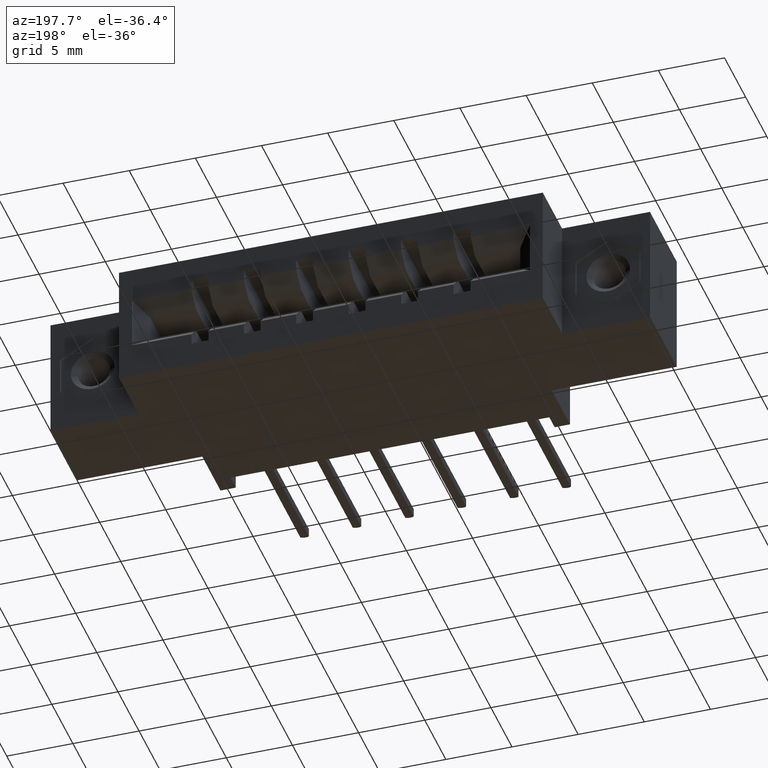
[diagram: clean part render]
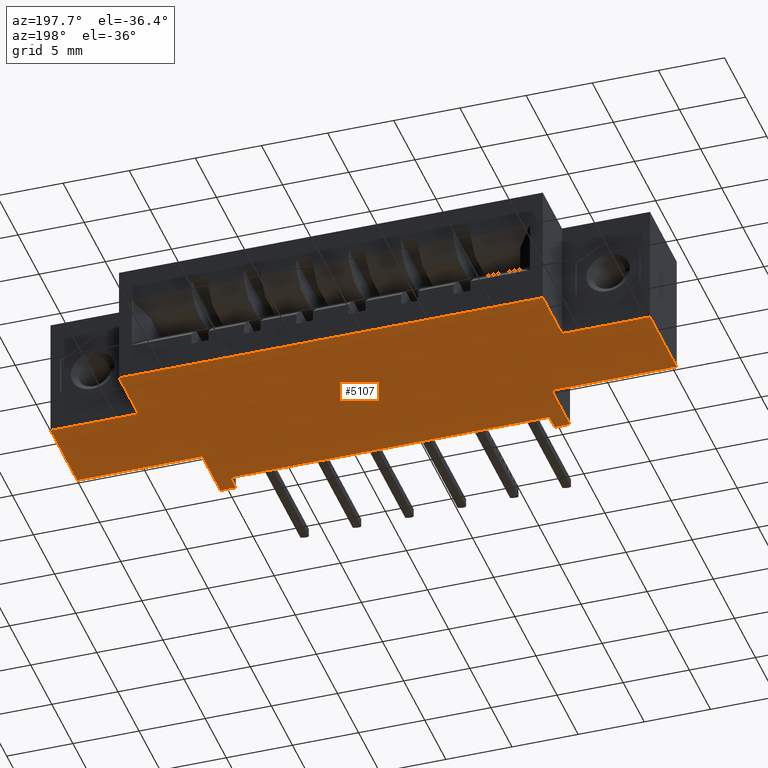
[diagram: same view with one face highlighted and labeled with its STEP entity id]
A machine part, auxiliary view. The second image highlights one B-rep face of the part: STEP entity #5107.
In plain terms, the highlighted planar face has unit normal (0, 0, 1).
Its self-contained STEP definition (entity closure, byte-faithful):
#101 = FACE_OUTER_BOUND ( 'NONE', #7151, .T. ) ;
#145 = CARTESIAN_POINT ( 'NONE',  ( 1.522500000000001100, 0.4199999999999999800, -0.3700000000000001600 ) ) ;
#171 = ORIENTED_EDGE ( 'NONE', *, *, #1932, .F. ) ;
#301 = CARTESIAN_POINT ( 'NONE',  ( 1.366499999999999800, 0.05000000000000000300, -0.3700000000000000000 ) ) ;
#534 = VERTEX_POINT ( 'NONE', #4949 ) ;
#630 = CARTESIAN_POINT ( 'NONE',  ( 0.0000000000000000000, 0.0000000000000000000, -0.3700000000000000000 ) ) ;
#702 = CARTESIAN_POINT ( 'NONE',  ( 1.522500000000001100, 0.5999999999999999800, -0.3700000000000001600 ) ) ;
#738 = CARTESIAN_POINT ( 'NONE',  ( 1.784000000000000500, 0.4200000000000000400, -0.3700000000000000000 ) ) ;
#802 = CARTESIAN_POINT ( 'NONE',  ( 1.366499999999999800, 0.0000000000000000000, -0.3700000000000000000 ) ) ;
#941 = VECTOR ( 'NONE', #3338, 39.37007874015748100 ) ;
#973 = DIRECTION ( 'NONE',  ( -0.0000000000000000000, -1.000000000000000000, -0.0000000000000000000 ) ) ;
#1068 = EDGE_CURVE ( 'NONE', #1833, #6064, #9035, .T. ) ;
#1072 = LINE ( 'NONE', #3720, #2875 ) ;
#1094 = DIRECTION ( 'NONE',  ( -0.0000000000000000000, -1.000000000000000000, -0.0000000000000000000 ) ) ;
#1228 = CARTESIAN_POINT ( 'NONE',  ( 0.3719999999999993300, 0.0000000000000000000, -0.3700000000000000000 ) ) ;
#1236 = VERTEX_POINT ( 'NONE', #1310 ) ;
#1263 = DIRECTION ( 'NONE',  ( -0.0000000000000000000, -1.000000000000000000, -0.0000000000000000000 ) ) ;
#1293 = VECTOR ( 'NONE', #1489, 39.37007874015748100 ) ;
#1310 = CARTESIAN_POINT ( 'NONE',  ( 0.2615000000000001200, 0.4199999999999999800, -0.3700000000000000000 ) ) ;
#1459 = CARTESIAN_POINT ( 'NONE',  ( 0.3719999999999986700, 0.1699999999999999800, -0.3699999999999977800 ) ) ;
#1469 = ORIENTED_EDGE ( 'NONE', *, *, #6268, .F. ) ;
#1489 = DIRECTION ( 'NONE',  ( -0.0000000000000000000, -1.000000000000000000, -0.0000000000000000000 ) ) ;
#1550 = EDGE_CURVE ( 'NONE', #534, #4536, #6971, .T. ) ;
#1581 = DIRECTION ( 'NONE',  ( -0.0000000000000000000, -1.000000000000000000, -0.0000000000000000000 ) ) ;
#1655 = LINE ( 'NONE', #7732, #3426 ) ;
#1675 = VECTOR ( 'NONE', #3062, 39.37007874015748100 ) ;
#1798 = LINE ( 'NONE', #4227, #5577 ) ;
#1833 = VERTEX_POINT ( 'NONE', #5777 ) ;
#1879 = ORIENTED_EDGE ( 'NONE', *, *, #9361, .T. ) ;
#1932 = EDGE_CURVE ( 'NONE', #4856, #7394, #1655, .T. ) ;
#1981 = VERTEX_POINT ( 'NONE', #7136 ) ;
#2205 = LINE ( 'NONE', #301, #9640 ) ;
#2460 = DIRECTION ( 'NONE',  ( 1.000000000000000000, -0.0000000000000000000, -0.0000000000000000000 ) ) ;
#2587 = CARTESIAN_POINT ( 'NONE',  ( 1.522500000000001100, 0.4199999999999999800, -0.3700000000000001600 ) ) ;
#2642 = CARTESIAN_POINT ( 'NONE',  ( 0.0000000000000000000, 0.5999999999999999800, -0.3700000000000000000 ) ) ;
#2666 = VERTEX_POINT ( 'NONE', #2804 ) ;
#2688 = EDGE_CURVE ( 'NONE', #4621, #7265, #3079, .T. ) ;
#2798 = ORIENTED_EDGE ( 'NONE', *, *, #4212, .F. ) ;
#2803 = DIRECTION ( 'NONE',  ( -1.000000000000000000, -0.0000000000000000000, -0.0000000000000000000 ) ) ;
#2804 = CARTESIAN_POINT ( 'NONE',  ( 1.784000000000000300, 0.1699999999999999800, -0.3700000000000000000 ) ) ;
#2875 = VECTOR ( 'NONE', #3641, 39.37007874015748100 ) ;
#2984 = LINE ( 'NONE', #2587, #941 ) ;
#3014 = CARTESIAN_POINT ( 'NONE',  ( 0.0000000000000000000, 0.4199999999999999800, -0.3700000000000000000 ) ) ;
#3062 = DIRECTION ( 'NONE',  ( -1.000000000000000000, -0.0000000000000000000, -0.0000000000000000000 ) ) ;
#3079 = LINE ( 'NONE', #2642, #8569 ) ;
#3158 = VERTEX_POINT ( 'NONE', #8166 ) ;
#3287 = ORIENTED_EDGE ( 'NONE', *, *, #9010, .F. ) ;
#3338 = DIRECTION ( 'NONE',  ( -0.0000000000000000000, 1.000000000000000000, -0.0000000000000000000 ) ) ;
#3426 = VECTOR ( 'NONE', #1094, 39.37007874015748100 ) ;
#3641 = DIRECTION ( 'NONE',  ( 1.000000000000000000, 0.0000000000000000000, -4.589798376452054700E-015 ) ) ;
#3720 = CARTESIAN_POINT ( 'NONE',  ( -1.365923996832131600E-015, 0.1699999999999999800, -0.3699999999999960500 ) ) ;
#3852 = VERTEX_POINT ( 'NONE', #4826 ) ;
#3892 = LINE ( 'NONE', #3014, #1675 ) ;
#3900 = CARTESIAN_POINT ( 'NONE',  ( 1.784000000000000300, 0.1699999999999999800, -0.3700000000000000000 ) ) ;
#3926 = EDGE_CURVE ( 'NONE', #9278, #9423, #6059, .T. ) ;
#3943 = ORIENTED_EDGE ( 'NONE', *, *, #3926, .F. ) ;
#3944 = DIRECTION ( 'NONE',  ( -1.000000000000000000, -0.0000000000000000000, -0.0000000000000000000 ) ) ;
#3981 = EDGE_CURVE ( 'NONE', #3158, #9064, #1798, .T. ) ;
#4020 = VECTOR ( 'NONE', #4432, 39.37007874015748100 ) ;
#4047 = LINE ( 'NONE', #9399, #6311 ) ;
#4093 = EDGE_CURVE ( 'NONE', #7394, #3852, #1072, .T. ) ;
#4116 = VECTOR ( 'NONE', #2460, 39.37007874015748100 ) ;
#4193 = DIRECTION ( 'NONE',  ( 1.000000000000000000, 0.0000000000000000000, 0.0000000000000000000 ) ) ;
#4212 = EDGE_CURVE ( 'NONE', #1236, #4856, #3892, .T. ) ;
#4221 = CARTESIAN_POINT ( 'NONE',  ( 0.0000000000000000000, 0.4199999999999999800, -0.3700000000000000000 ) ) ;
#4227 = CARTESIAN_POINT ( 'NONE',  ( 0.4174999999999997000, 0.05000000000000000300, -0.3700000000000000000 ) ) ;
#4423 = CARTESIAN_POINT ( 'NONE',  ( 1.784000000000000500, 0.4199999999999999800, -0.3700000000000000000 ) ) ;
#4432 = DIRECTION ( 'NONE',  ( -1.000000000000000000, 0.0000000000000000000, -5.223418725935506000E-016 ) ) ;
#4536 = VERTEX_POINT ( 'NONE', #1228 ) ;
#4570 = LINE ( 'NONE', #1459, #6377 ) ;
#4621 = VERTEX_POINT ( 'NONE', #702 ) ;
#4687 = CARTESIAN_POINT ( 'NONE',  ( 1.412000000000000100, 0.1699999999999999800, -0.3700000000000000000 ) ) ;
#4826 = CARTESIAN_POINT ( 'NONE',  ( 0.3719999999999986700, 0.1699999999999999800, -0.3699999999999977800 ) ) ;
#4856 = VERTEX_POINT ( 'NONE', #4221 ) ;
#4946 = DIRECTION ( 'NONE',  ( -0.0000000000000000000, 1.000000000000000000, -0.0000000000000000000 ) ) ;
#4949 = CARTESIAN_POINT ( 'NONE',  ( 0.4174999999999997000, 0.0000000000000000000, -0.3700000000000000000 ) ) ;
#5107 = ADVANCED_FACE ( 'NONE', ( #101 ), #9020, .F. ) ;
#5224 = ORIENTED_EDGE ( 'NONE', *, *, #9235, .T. ) ;
#5513 = EDGE_CURVE ( 'NONE', #3852, #4536, #4570, .T. ) ;
#5577 = VECTOR ( 'NONE', #4193, 39.37007874015748100 ) ;
#5597 = ORIENTED_EDGE ( 'NONE', *, *, #1068, .T. ) ;
#5603 = DIRECTION ( 'NONE',  ( -0.0000000000000000000, -1.000000000000000000, -0.0000000000000000000 ) ) ;
#5672 = CARTESIAN_POINT ( 'NONE',  ( 1.366499999999999800, 0.05000000000000000300, -0.3700000000000000000 ) ) ;
#5764 = ORIENTED_EDGE ( 'NONE', *, *, #4093, .F. ) ;
#5777 = CARTESIAN_POINT ( 'NONE',  ( 1.412000000000000100, 0.0000000000000000000, -0.3700000000000000000 ) ) ;
#5928 = DIRECTION ( 'NONE',  ( -1.000000000000000000, -0.0000000000000000000, -0.0000000000000000000 ) ) ;
#5967 = ORIENTED_EDGE ( 'NONE', *, *, #1550, .T. ) ;
#6013 = CARTESIAN_POINT ( 'NONE',  ( 0.0000000000000000000, 0.0000000000000000000, -0.3700000000000000000 ) ) ;
#6059 = LINE ( 'NONE', #4423, #4020 ) ;
#6064 = VERTEX_POINT ( 'NONE', #802 ) ;
#6189 = ORIENTED_EDGE ( 'NONE', *, *, #3981, .F. ) ;
#6203 = EDGE_CURVE ( 'NONE', #1981, #1833, #8440, .T. ) ;
#6268 = EDGE_CURVE ( 'NONE', #9064, #6064, #2205, .T. ) ;
#6304 = ORIENTED_EDGE ( 'NONE', *, *, #6916, .T. ) ;
#6311 = VECTOR ( 'NONE', #4946, 39.37007874015748100 ) ;
#6377 = VECTOR ( 'NONE', #1263, 39.37007874015748100 ) ;
#6446 = VECTOR ( 'NONE', #973, 39.37007874015748100 ) ;
#6737 = ORIENTED_EDGE ( 'NONE', *, *, #2688, .F. ) ;
#6750 = VECTOR ( 'NONE', #5928, 39.37007874015748100 ) ;
#6768 = CARTESIAN_POINT ( 'NONE',  ( 1.784000000000000500, 0.5999999999999999800, -0.3700000000000000000 ) ) ;
#6898 = ORIENTED_EDGE ( 'NONE', *, *, #5513, .F. ) ;
#6916 = EDGE_CURVE ( 'NONE', #1236, #7265, #4047, .T. ) ;
#6971 = LINE ( 'NONE', #6013, #6750 ) ;
#7136 = CARTESIAN_POINT ( 'NONE',  ( 1.412000000000000100, 0.1699999999999999800, -0.3700000000000000000 ) ) ;
#7151 = EDGE_LOOP ( 'NONE', ( #5967, #6898, #5764, #171, #2798, #6304, #6737, #3287, #3943, #5224, #8958, #7399, #5597, #1469, #6189, #1879 ) ) ;
#7265 = VERTEX_POINT ( 'NONE', #8508 ) ;
#7305 = VECTOR ( 'NONE', #3944, 39.37007874015748100 ) ;
#7394 = VERTEX_POINT ( 'NONE', #9388 ) ;
#7399 = ORIENTED_EDGE ( 'NONE', *, *, #6203, .T. ) ;
#7612 = CARTESIAN_POINT ( 'NONE',  ( 0.4174999999999997000, 0.05000000000000000300, -0.3700000000000000000 ) ) ;
#7732 = CARTESIAN_POINT ( 'NONE',  ( 0.0000000000000000000, 0.5999999999999999800, -0.3700000000000000000 ) ) ;
#8166 = CARTESIAN_POINT ( 'NONE',  ( 0.4174999999999997000, 0.05000000000000000300, -0.3700000000000000000 ) ) ;
#8240 = VECTOR ( 'NONE', #1581, 39.37007874015748100 ) ;
#8355 = LINE ( 'NONE', #3900, #4116 ) ;
#8440 = LINE ( 'NONE', #4687, #6446 ) ;
#8471 = LINE ( 'NONE', #7612, #8240 ) ;
#8508 = CARTESIAN_POINT ( 'NONE',  ( 0.2615000000000000700, 0.5999999999999999800, -0.3700000000000000000 ) ) ;
#8569 = VECTOR ( 'NONE', #2803, 39.37007874015748100 ) ;
#8898 = EDGE_CURVE ( 'NONE', #1981, #2666, #8355, .T. ) ;
#8958 = ORIENTED_EDGE ( 'NONE', *, *, #8898, .F. ) ;
#9010 = EDGE_CURVE ( 'NONE', #9423, #4621, #2984, .T. ) ;
#9020 = PLANE ( 'NONE',  #9143 ) ;
#9032 = LINE ( 'NONE', #6768, #1293 ) ;
#9035 = LINE ( 'NONE', #630, #7305 ) ;
#9064 = VERTEX_POINT ( 'NONE', #5672 ) ;
#9143 = AXIS2_PLACEMENT_3D ( 'NONE', #9232, #9272, #9185 ) ;
#9185 = DIRECTION ( 'NONE',  ( 1.000000000000000000, 0.0000000000000000000, -0.0000000000000000000 ) ) ;
#9232 = CARTESIAN_POINT ( 'NONE',  ( 0.0000000000000000000, 0.5999999999999999800, -0.3700000000000000000 ) ) ;
#9235 = EDGE_CURVE ( 'NONE', #9278, #2666, #9032, .T. ) ;
#9272 = DIRECTION ( 'NONE',  ( 0.0000000000000000000, 0.0000000000000000000, 1.000000000000000000 ) ) ;
#9278 = VERTEX_POINT ( 'NONE', #738 ) ;
#9361 = EDGE_CURVE ( 'NONE', #3158, #534, #8471, .T. ) ;
#9388 = CARTESIAN_POINT ( 'NONE',  ( -1.365923996832131600E-015, 0.1699999999999999800, -0.3699999999999960500 ) ) ;
#9399 = CARTESIAN_POINT ( 'NONE',  ( 0.2615000000000000700, 0.4199999999999999800, -0.3700000000000000000 ) ) ;
#9423 = VERTEX_POINT ( 'NONE', #145 ) ;
#9640 = VECTOR ( 'NONE', #5603, 39.37007874015748100 ) ;